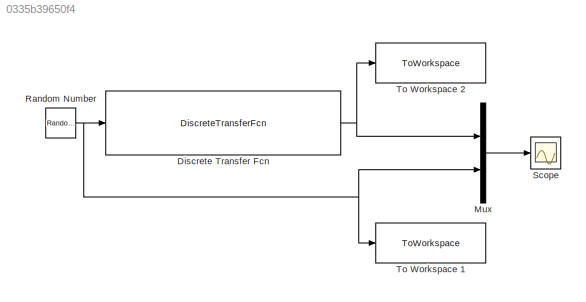
MODEL slx_0335b39650f4
KIND model
CONFIG AbsTol = auto
CONFIG EnableMultiTasking = off
CONFIG FixedStep = auto
CONFIG MaxStep = auto
CONFIG MinStep = auto
CONFIG RelTol = 1e-3
CONFIG SampleTimeConstraint = Unconstrained
CONFIG Solver = VariableStepAuto
CONFIG SolverName = VariableStepAuto
CONFIG StartTime = 0.0
CONFIG StopTime = 10000.0
BLOCK [DiscreteTransferFcn] Discrete Transfer Fcn 
  Denominator = [1.0000 -2.7159 2.4510 -0.7350]
  InputPortMap = u0
  Numerator = [0  0.0020 -0.0001 -0.0018]
  Ports = [1, 1]
BLOCK [Mux] Mux
  DisplayOption = bar
  Inputs = 2
  Ports = [2, 1]
BLOCK [RandomNumber] Random Number 
  SampleTime = 1
BLOCK [Scope] Scope 
  Floating = off
  NumInputPorts = 1
  Ports = [1]
  ScopeSpecificationString = Simulink.scopes.TimeScopeBlockCfg('CurrentConfiguration', extmgr.ConfigurationSet(extmgr.Configuration('Core','General UI',true),extmgr.Configuration('Core','Source UI',true),extmgr.Configuration('Sources','WiredSimulink',true),extmgr.Configuration('Visuals','Time Domain',true,'SerializedDisplays',{struct('MinYLimReal','-4.84744','MaxYLimReal','4.78388','YLabelReal','','MinYLimMag','0.00000','MaxY...<+1387ch>
BLOCK [ToWorkspace] To Workspace 1
  FixptAsFi = on
  MaxDataPoints = inf
  Ports = [1]
  SampleTime = -1
  VariableName = InputRandom
BLOCK [ToWorkspace] To Workspace 2
  FixptAsFi = on
  MaxDataPoints = inf
  Ports = [1]
  SampleTime = -1
  VariableName = DiscreteOutput
NET Discrete Transfer Fcn :1 -> Mux:1, To Workspace 2:1
LINE Mux:1 -> Scope :1
NET Random Number :1 -> Discrete Transfer Fcn :1, Mux:2, To Workspace 1:1
note: NET lines group one-source signal fan-out (src -> all destinations, sorted); 1:1 wires keep LINE
